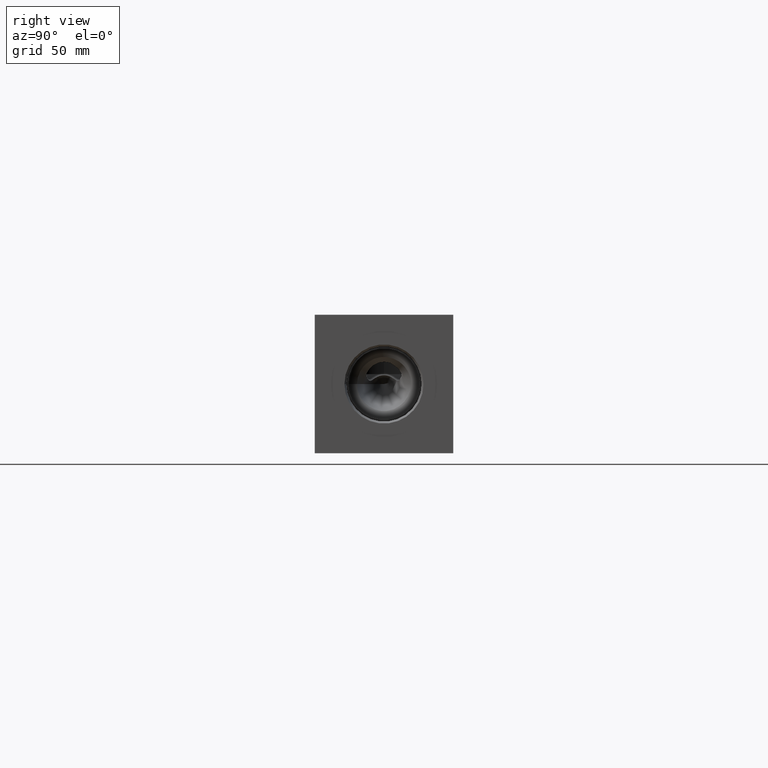
[diagram: clean part render]
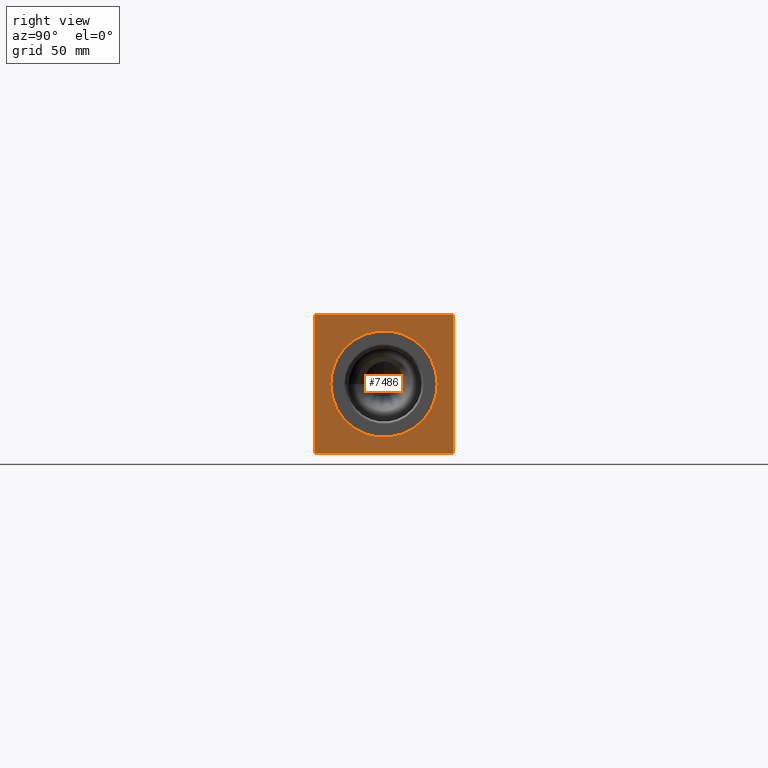
[diagram: same view with one face highlighted and labeled with its STEP entity id]
A machine part, right view. The second image highlights one B-rep face of the part: STEP entity #7486.
In plain terms, the highlighted planar face has unit normal (1, 0, 0).
Its self-contained STEP definition (entity closure, byte-faithful):
#117=CIRCLE('',#7772,29.2862);
#118=CIRCLE('',#7773,29.2862);
#259=FACE_BOUND('',#1355,.T.);
#921=FACE_OUTER_BOUND('',#1354,.T.);
#1354=EDGE_LOOP('',(#6560,#6561,#6562,#6563));
#1355=EDGE_LOOP('',(#6564,#6565));
#1628=LINE('',#11464,#2342);
#2073=LINE('',#12843,#2787);
#2074=LINE('',#12846,#2788);
#2075=LINE('',#12847,#2789);
#2342=VECTOR('',#8337,10.);
#2787=VECTOR('',#9480,10.);
#2788=VECTOR('',#9483,10.);
#2789=VECTOR('',#9484,10.);
#3080=VERTEX_POINT('',#11461);
#3081=VERTEX_POINT('',#11463);
#3385=VERTEX_POINT('',#12541);
#3386=VERTEX_POINT('',#12542);
#3482=VERTEX_POINT('',#12841);
#3483=VERTEX_POINT('',#12845);
#3917=EDGE_CURVE('',#3080,#3081,#1628,.T.);
#4369=EDGE_CURVE('',#3385,#3386,#117,.T.);
#4370=EDGE_CURVE('',#3386,#3385,#118,.T.);
#4513=EDGE_CURVE('',#3482,#3081,#2073,.T.);
#4514=EDGE_CURVE('',#3483,#3482,#2074,.T.);
#4515=EDGE_CURVE('',#3483,#3080,#2075,.T.);
#6560=ORIENTED_EDGE('',*,*,#4514,.T.);
#6561=ORIENTED_EDGE('',*,*,#4513,.T.);
#6562=ORIENTED_EDGE('',*,*,#3917,.F.);
#6563=ORIENTED_EDGE('',*,*,#4515,.F.);
#6564=ORIENTED_EDGE('',*,*,#4369,.T.);
#6565=ORIENTED_EDGE('',*,*,#4370,.T.);
#6808=PLANE('',#7924);
#7486=ADVANCED_FACE('',(#921,#259),#6808,.T.);
#7772=AXIS2_PLACEMENT_3D('',#12543,#9124,#9125);
#7773=AXIS2_PLACEMENT_3D('',#12544,#9126,#9127);
#7924=AXIS2_PLACEMENT_3D('',#12844,#9481,#9482);
#8337=DIRECTION('',(0.,1.,0.));
#9124=DIRECTION('center_axis',(-1.,0.,0.));
#9125=DIRECTION('ref_axis',(0.,1.,0.));
#9126=DIRECTION('center_axis',(-1.,0.,0.));
#9127=DIRECTION('ref_axis',(0.,1.,0.));
#9480=DIRECTION('',(0.,0.,1.));
#9481=DIRECTION('center_axis',(1.,0.,0.));
#9482=DIRECTION('ref_axis',(0.,1.,0.));
#9483=DIRECTION('',(0.,1.,0.));
#9484=DIRECTION('',(0.,0.,1.));
#11461=CARTESIAN_POINT('',(387.35,0.,76.2));
#11463=CARTESIAN_POINT('',(387.35,76.2,76.2));
#11464=CARTESIAN_POINT('',(387.35,0.,76.2));
#12541=CARTESIAN_POINT('',(387.35,67.3862,38.1));
#12542=CARTESIAN_POINT('',(387.35,8.8138,38.1));
#12543=CARTESIAN_POINT('Origin',(387.35,38.1,38.1));
#12544=CARTESIAN_POINT('Origin',(387.35,38.1,38.1));
#12841=CARTESIAN_POINT('',(387.35,76.2,0.));
#12843=CARTESIAN_POINT('',(387.35,76.2,0.));
#12844=CARTESIAN_POINT('Origin',(387.35,0.,0.));
#12845=CARTESIAN_POINT('',(387.35,0.,0.));
#12846=CARTESIAN_POINT('',(387.35,0.,0.));
#12847=CARTESIAN_POINT('',(387.35,0.,0.));